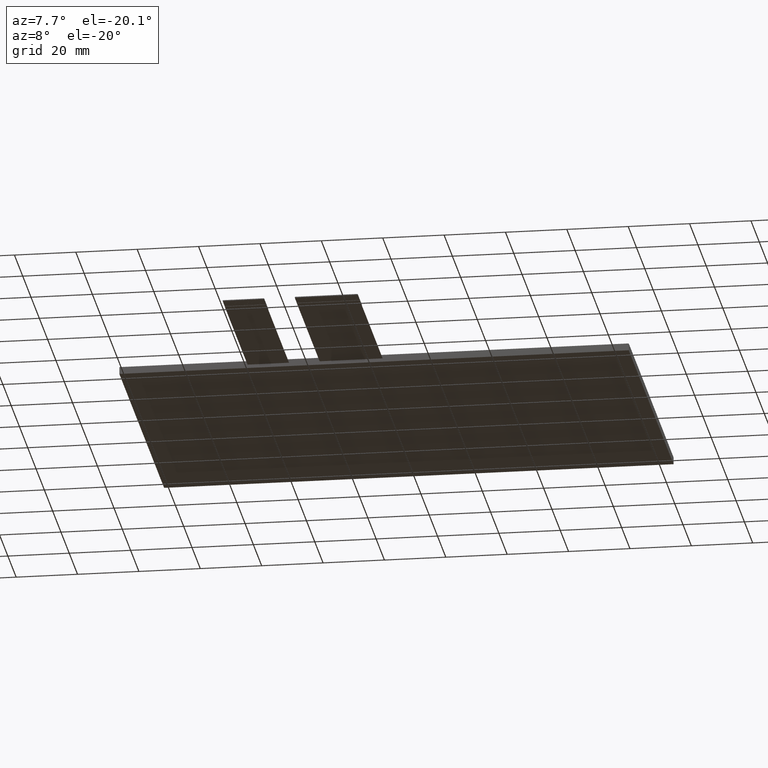
[diagram: clean part render]
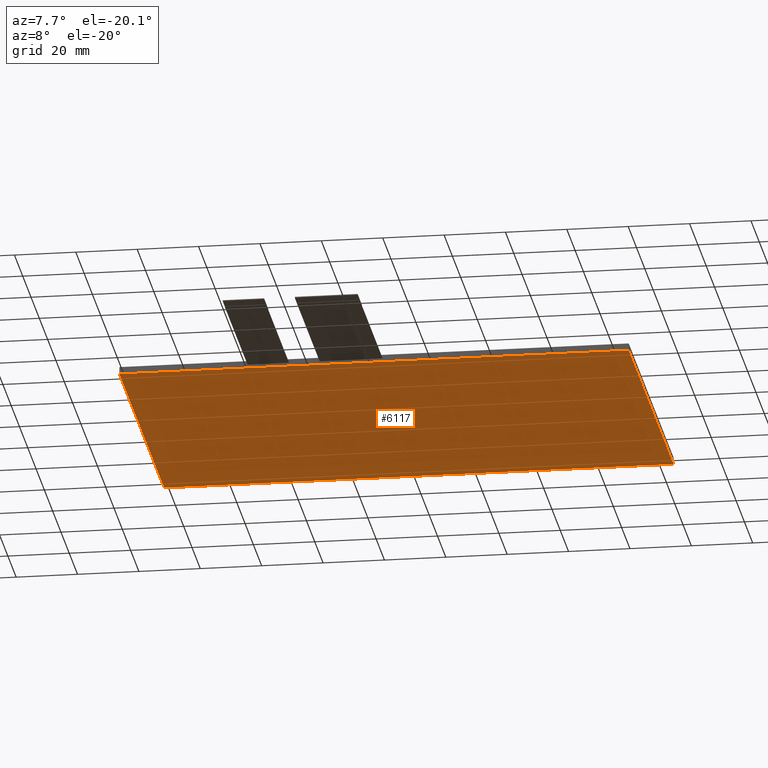
[diagram: same view with one face highlighted and labeled with its STEP entity id]
A machine part, auxiliary view. The second image highlights one B-rep face of the part: STEP entity #6117.
In plain terms, the highlighted planar face has unit normal (0, 0, -1).
Its self-contained STEP definition (entity closure, byte-faithful):
#347=PLANE('',#6437);
#639=FACE_OUTER_BOUND('',#933,.T.);
#933=EDGE_LOOP('',(#5815,#5816,#5817,#5818));
#1781=LINE('',#9611,#2637);
#1784=LINE('',#9617,#2640);
#1787=LINE('',#9623,#2643);
#1790=LINE('',#9627,#2646);
#2637=VECTOR('',#7877,10.);
#2640=VECTOR('',#7882,10.);
#2643=VECTOR('',#7887,10.);
#2646=VECTOR('',#7892,10.);
#3225=VERTEX_POINT('',#9608);
#3226=VERTEX_POINT('',#9610);
#3228=VERTEX_POINT('',#9616);
#3230=VERTEX_POINT('',#9622);
#4085=EDGE_CURVE('',#3226,#3225,#1781,.T.);
#4088=EDGE_CURVE('',#3228,#3226,#1784,.T.);
#4091=EDGE_CURVE('',#3230,#3228,#1787,.T.);
#4094=EDGE_CURVE('',#3225,#3230,#1790,.T.);
#5815=ORIENTED_EDGE('',*,*,#4094,.T.);
#5816=ORIENTED_EDGE('',*,*,#4091,.T.);
#5817=ORIENTED_EDGE('',*,*,#4088,.T.);
#5818=ORIENTED_EDGE('',*,*,#4085,.T.);
#6117=ADVANCED_FACE('',(#639),#347,.T.);
#6437=AXIS2_PLACEMENT_3D('',#9628,#7893,#7894);
#7877=DIRECTION('',(-1.64477485129653E-16,1.,0.));
#7882=DIRECTION('',(-1.,-5.35047240783208E-17,0.));
#7887=DIRECTION('',(1.64477485129653E-16,-1.,0.));
#7892=DIRECTION('',(1.,0.,0.));
#7893=DIRECTION('center_axis',(0.,0.,-1.));
#7894=DIRECTION('ref_axis',(-1.,0.,0.));
#9608=CARTESIAN_POINT('',(-82.7,52.88,-2.35));
#9610=CARTESIAN_POINT('',(-82.7,-55.12,-2.35));
#9611=CARTESIAN_POINT('',(-82.7,52.88,-2.35));
#9616=CARTESIAN_POINT('',(83.3,-55.12,-2.35));
#9617=CARTESIAN_POINT('',(-82.7,-55.12,-2.35));
#9622=CARTESIAN_POINT('',(83.3,52.88,-2.35));
#9623=CARTESIAN_POINT('',(83.3,-55.12,-2.35));
#9627=CARTESIAN_POINT('',(83.3,52.88,-2.35));
#9628=CARTESIAN_POINT('Origin',(0.299999999999976,-1.11999999999999,-2.35));